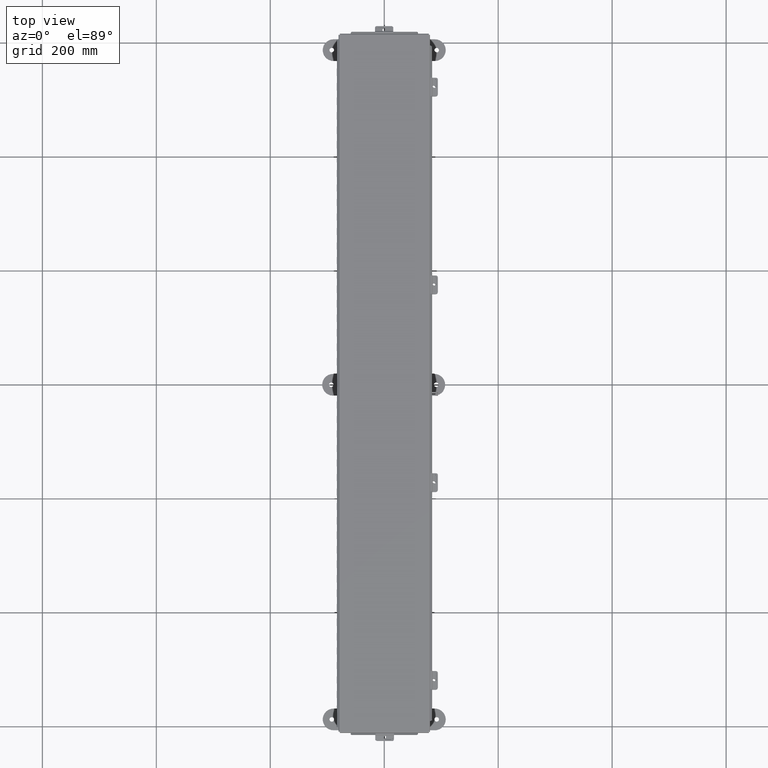
[diagram: clean part render]
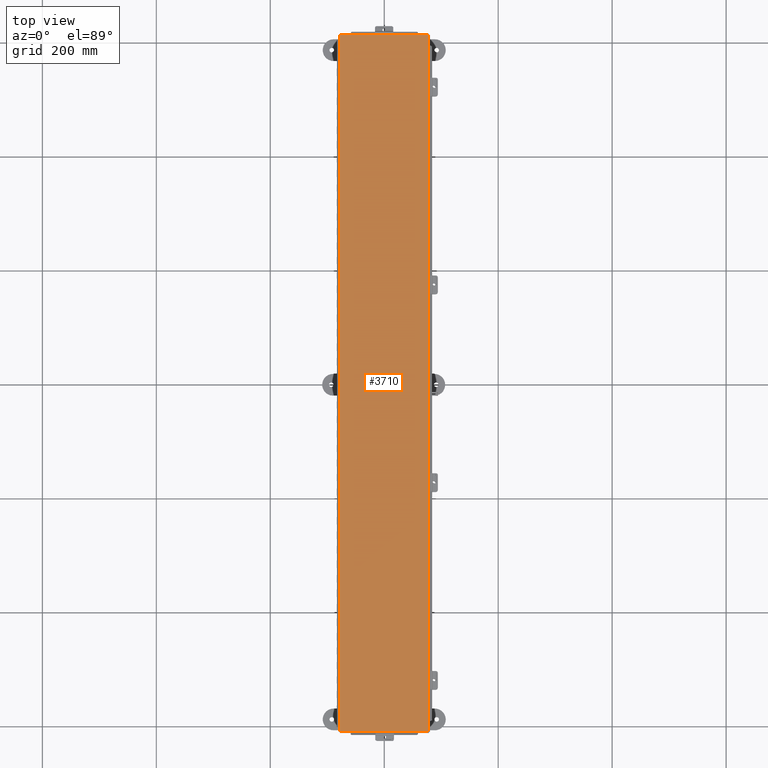
[diagram: same view with one face highlighted and labeled with its STEP entity id]
A machine part, top view. The second image highlights one B-rep face of the part: STEP entity #3710.
In plain terms, the highlighted planar face has unit normal (-0, -0, 1).
Its self-contained STEP definition (entity closure, byte-faithful):
#26 = ORIENTED_EDGE ( 'NONE', *, *, #33523, .T. ) ;
#346 = LINE ( 'NONE', #25702, #16343 ) ;
#1775 = AXIS2_PLACEMENT_3D ( 'NONE', #15032, #35003, #17929 ) ;
#2390 = VERTEX_POINT ( 'NONE', #19484 ) ;
#2540 = ORIENTED_EDGE ( 'NONE', *, *, #27895, .T. ) ;
#3710 = ADVANCED_FACE ( 'NONE', ( #4016 ), #12176, .T. ) ;
#4016 = FACE_OUTER_BOUND ( 'NONE', #32879, .T. ) ;
#5261 = VECTOR ( 'NONE', #11861, 39.37007874015748100 ) ;
#7696 = CARTESIAN_POINT ( 'NONE',  ( 3.068550000000006300, 24.06855000000000500, -0.07469999999999907300 ) ) ;
#7814 = ORIENTED_EDGE ( 'NONE', *, *, #25075, .T. ) ;
#8793 = DIRECTION ( 'NONE',  ( -1.000000000000000000, -3.852623960348586100E-030, -0.0000000000000000000 ) ) ;
#9651 = ORIENTED_EDGE ( 'NONE', *, *, #33581, .T. ) ;
#11643 = LINE ( 'NONE', #34359, #26780 ) ;
#11861 = DIRECTION ( 'NONE',  ( -3.803320153772282700E-030, -1.000000000000000000, 8.874685183736382800E-031 ) ) ;
#11974 = VERTEX_POINT ( 'NONE', #21484 ) ;
#12176 = PLANE ( 'NONE',  #1775 ) ;
#15032 = CARTESIAN_POINT ( 'NONE',  ( 0.0000000000000000000, -1.067128122525102800E-017, -0.07470000000000015500 ) ) ;
#16343 = VECTOR ( 'NONE', #20096, 39.37007874015748100 ) ;
#17929 = DIRECTION ( 'NONE',  ( -1.000000000000000000, -3.852623960348586100E-030, 0.0000000000000000000 ) ) ;
#18522 = VECTOR ( 'NONE', #26071, 39.37007874015748100 ) ;
#19484 = CARTESIAN_POINT ( 'NONE',  ( -3.068550000000013000, -24.06855000000000200, -0.07470000000000125200 ) ) ;
#20096 = DIRECTION ( 'NONE',  ( 1.000000000000000000, 3.852623960348586100E-030, -0.0000000000000000000 ) ) ;
#21484 = CARTESIAN_POINT ( 'NONE',  ( -3.068550000000013400, 24.06855000000000500, -0.07470000000000015500 ) ) ;
#23212 = CARTESIAN_POINT ( 'NONE',  ( -3.068550000000013000, -24.07447893218812500, -0.07470000000000125200 ) ) ;
#25075 = EDGE_CURVE ( 'NONE', #2390, #11974, #33685, .T. ) ;
#25702 = CARTESIAN_POINT ( 'NONE',  ( -3.074478932188149800, 24.06855000000000500, -0.07470000000000015500 ) ) ;
#26058 = CARTESIAN_POINT ( 'NONE',  ( 3.068550000000006300, 24.07447893218813600, -0.07469999999999907300 ) ) ;
#26071 = DIRECTION ( 'NONE',  ( 3.803320153772282700E-030, 1.000000000000000000, -8.874685183736382800E-031 ) ) ;
#26106 = CARTESIAN_POINT ( 'NONE',  ( 3.068550000000006800, -24.06855000000000200, -0.07470000000000015500 ) ) ;
#26261 = VERTEX_POINT ( 'NONE', #26106 ) ;
#26780 = VECTOR ( 'NONE', #8793, 39.37007874015748100 ) ;
#27895 = EDGE_CURVE ( 'NONE', #26261, #2390, #11643, .T. ) ;
#30477 = VERTEX_POINT ( 'NONE', #7696 ) ;
#32879 = EDGE_LOOP ( 'NONE', ( #26, #9651, #2540, #7814 ) ) ;
#33523 = EDGE_CURVE ( 'NONE', #11974, #30477, #346, .T. ) ;
#33581 = EDGE_CURVE ( 'NONE', #30477, #26261, #35529, .T. ) ;
#33685 = LINE ( 'NONE', #23212, #18522 ) ;
#34359 = CARTESIAN_POINT ( 'NONE',  ( 3.074478932188143200, -24.06855000000000200, -0.07470000000000015500 ) ) ;
#35003 = DIRECTION ( 'NONE',  ( -2.279388318627549900E-060, 5.916456789157564900E-031, -1.000000000000000000 ) ) ;
#35529 = LINE ( 'NONE', #26058, #5261 ) ;